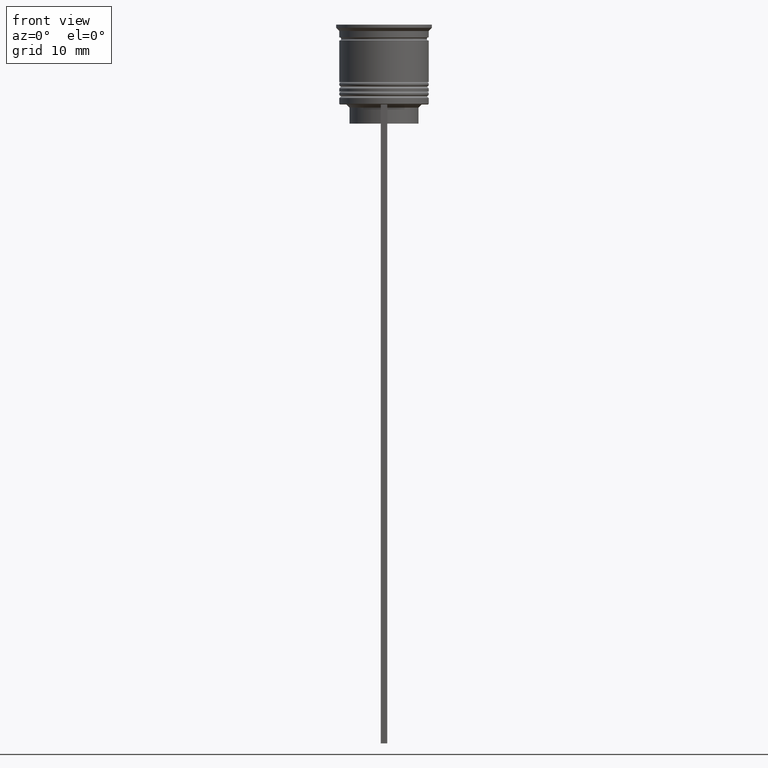
[diagram: clean part render]
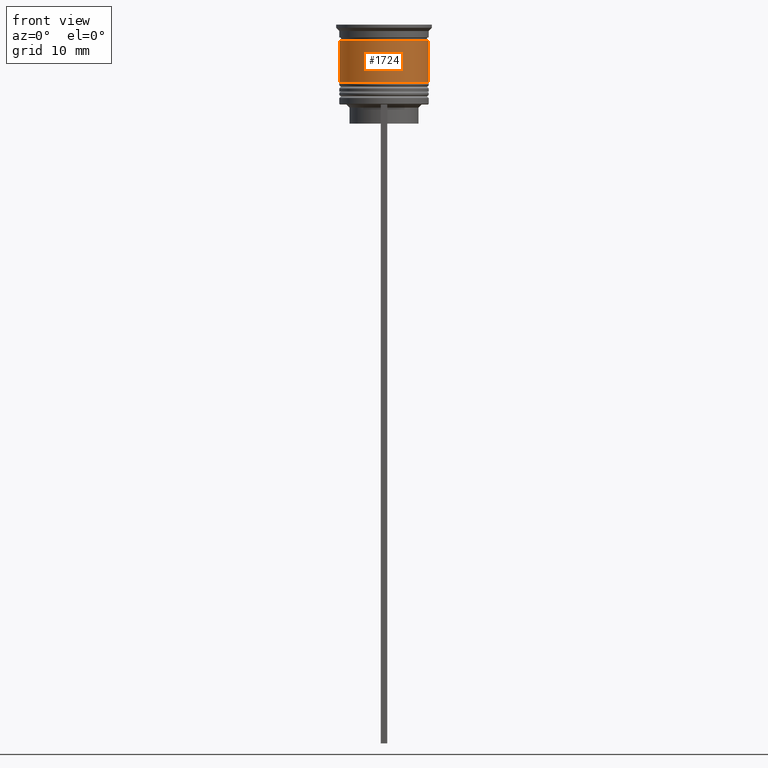
[diagram: same view with one face highlighted and labeled with its STEP entity id]
A machine part, front view. The second image highlights one B-rep face of the part: STEP entity #1724.
In plain terms, the highlighted cylindrical surface (partial cylindrical patch) has radius 7 mm, axis along (-0, -0, 1).
Its self-contained STEP definition (entity closure, byte-faithful):
#69 = VERTEX_POINT ( 'NONE', #1233 ) ;
#113 = CARTESIAN_POINT ( 'NONE',  ( 0.000000000000000000, 0.000000000000000000, 0.000000000000000000 ) ) ;
#144 = CARTESIAN_POINT ( 'NONE',  ( 6.999999999999997335, 0.000000000000000000, -2.500000000000000444 ) ) ;
#154 = CYLINDRICAL_SURFACE ( 'NONE', #978, 6.999999999999999112 ) ;
#206 = DIRECTION ( 'NONE',  ( 1.000000000000000000, 0.000000000000000000, 0.000000000000000000 ) ) ;
#363 = VERTEX_POINT ( 'NONE', #144 ) ;
#384 = EDGE_LOOP ( 'NONE', ( #1236, #1497, #2249, #777 ) ) ;
#459 = LINE ( 'NONE', #690, #737 ) ;
#660 = VECTOR ( 'NONE', #1650, 1000.000000000000000 ) ;
#664 = LINE ( 'NONE', #2001, #660 ) ;
#690 = CARTESIAN_POINT ( 'NONE',  ( 6.999999999999999112, 0.000000000000000000, 0.000000000000000000 ) ) ;
#737 = VECTOR ( 'NONE', #1284, 1000.000000000000000 ) ;
#777 = ORIENTED_EDGE ( 'NONE', *, *, #1898, .F. ) ;
#884 = DIRECTION ( 'NONE',  ( -0.000000000000000000, -0.000000000000000000, 1.000000000000000000 ) ) ;
#907 = CARTESIAN_POINT ( 'NONE',  ( 0.000000000000000000, 0.000000000000000000, -9.000000000000001776 ) ) ;
#978 = AXIS2_PLACEMENT_3D ( 'NONE', #113, #884, #1635 ) ;
#1233 = CARTESIAN_POINT ( 'NONE',  ( -6.999999999999997335, 8.572527594031471218E-16, -2.500000000000000444 ) ) ;
#1236 = ORIENTED_EDGE ( 'NONE', *, *, #1335, .F. ) ;
#1284 = DIRECTION ( 'NONE',  ( -0.000000000000000000, -0.000000000000000000, 1.000000000000000000 ) ) ;
#1328 = AXIS2_PLACEMENT_3D ( 'NONE', #907, #1661, #2271 ) ;
#1335 = EDGE_CURVE ( 'NONE', #1504, #69, #664, .T. ) ;
#1497 = ORIENTED_EDGE ( 'NONE', *, *, #1509, .T. ) ;
#1504 = VERTEX_POINT ( 'NONE', #2049 ) ;
#1509 = EDGE_CURVE ( 'NONE', #1504, #1869, #2297, .T. ) ;
#1512 = CARTESIAN_POINT ( 'NONE',  ( 0.000000000000000000, 0.000000000000000000, -2.500000000000000444 ) ) ;
#1592 = FACE_OUTER_BOUND ( 'NONE', #384, .T. ) ;
#1635 = DIRECTION ( 'NONE',  ( 1.000000000000000000, 0.000000000000000000, 0.000000000000000000 ) ) ;
#1650 = DIRECTION ( 'NONE',  ( -0.000000000000000000, -0.000000000000000000, 1.000000000000000000 ) ) ;
#1661 = DIRECTION ( 'NONE',  ( -0.000000000000000000, -0.000000000000000000, 1.000000000000000000 ) ) ;
#1724 = ADVANCED_FACE ( 'NONE', ( #1592 ), #154, .T. ) ;
#1821 = EDGE_CURVE ( 'NONE', #1869, #363, #459, .T. ) ;
#1869 = VERTEX_POINT ( 'NONE', #1934 ) ;
#1885 = CIRCLE ( 'NONE', #2342, 6.999999999999997335 ) ;
#1898 = EDGE_CURVE ( 'NONE', #69, #363, #1885, .T. ) ;
#1918 = DIRECTION ( 'NONE',  ( -0.000000000000000000, -0.000000000000000000, 1.000000000000000000 ) ) ;
#1934 = CARTESIAN_POINT ( 'NONE',  ( 7.000000000000000888, 0.000000000000000000, -9.000000000000001776 ) ) ;
#2001 = CARTESIAN_POINT ( 'NONE',  ( -6.999999999999999112, 8.572527594031472204E-16, 0.000000000000000000 ) ) ;
#2049 = CARTESIAN_POINT ( 'NONE',  ( -7.000000000000000888, 8.572527594031474176E-16, -9.000000000000001776 ) ) ;
#2249 = ORIENTED_EDGE ( 'NONE', *, *, #1821, .T. ) ;
#2271 = DIRECTION ( 'NONE',  ( 1.000000000000000000, 0.000000000000000000, 0.000000000000000000 ) ) ;
#2297 = CIRCLE ( 'NONE', #1328, 7.000000000000000888 ) ;
#2342 = AXIS2_PLACEMENT_3D ( 'NONE', #1512, #1918, #206 ) ;